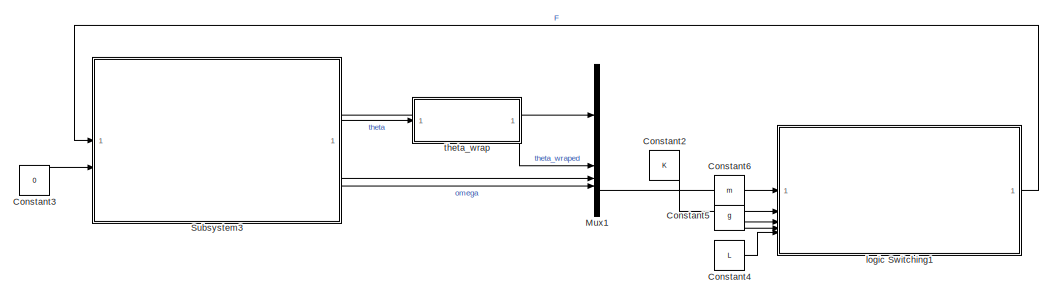
[diagram: root canvas - part 1/2, top right region]
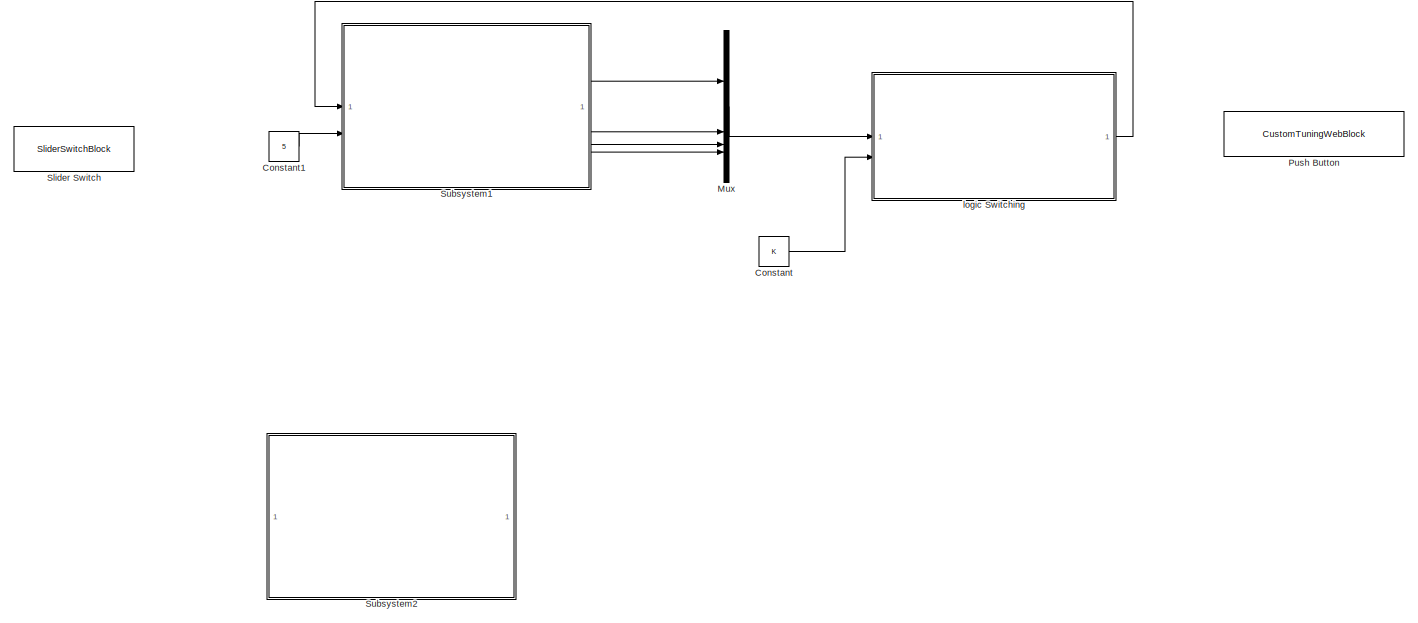
[diagram: root canvas - part 2/2, left side, full height]
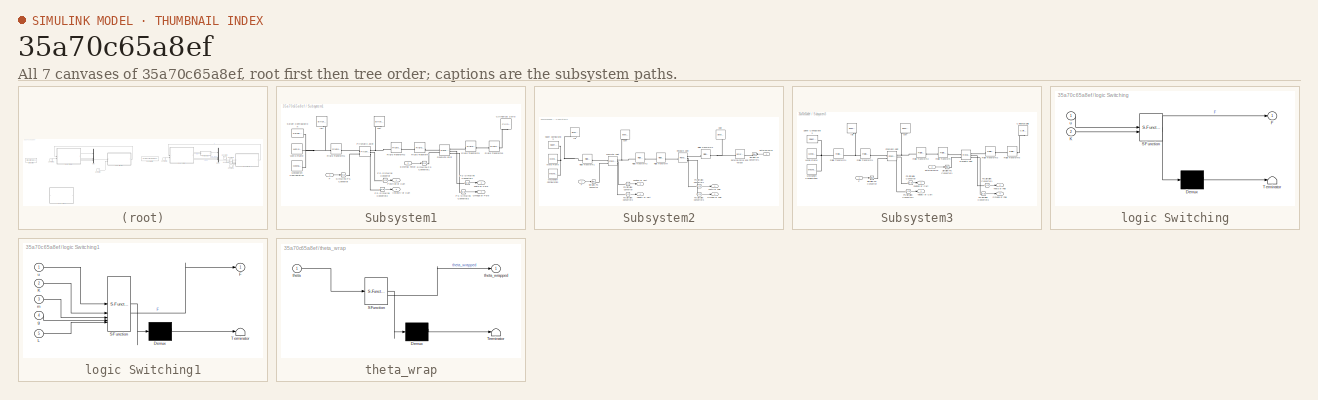
[diagram: thumbnail index - all 7 canvases of the model, root first then tree order]
MODEL slx_35a70c65a8ef
KIND model
CONFIG AbsTol = auto
CONFIG EnableMultiTasking = off
CONFIG FixedStep = 0.001
CONFIG MaxStep = auto
CONFIG MinStep = auto
CONFIG RelTol = 1e-3
CONFIG SampleTimeConstraint = Unconstrained
CONFIG SolverName = FixedStepAuto
CONFIG StartTime = 0.0
CONFIG StopTime = inf
BLOCK [Constant] Constant
  Commented = on
  Value = K
BLOCK [Constant] Constant1
  Commented = on
  Value = 5
BLOCK [Constant] Constant2
  Value = K
BLOCK [Constant] Constant3
  Value = 0
BLOCK [Constant] Constant4
  Value = L
BLOCK [Constant] Constant5
  Value = g
BLOCK [Constant] Constant6
  Value = m
BLOCK [Mux] Mux
  Commented = on
  DisplayOption = bar
BLOCK [Mux] Mux1
  DisplayOption = bar
BLOCK [CustomTuningWebBlock] Push Button
  Configuration = {"components":[{"name":"BackgroundImageComponent","settings":{"image":{"size":[0,0],"src":"default","srcOrientation":"horizontal"},"position":[0,0,1,1],"scaleMode":"0"}},{"name":"ButtonStateComponent","settings":{"buttonType":"momentary","clickFcn":"","image":{"size":[180,45],"srcOrientation":"Right"},"latched":false,"offValue":[],"onValue":"5","position":[0,0,1,1],"pressDelay":"500","pressFcn":""...<+15974ch>
  LabelPosition = Hide
  ShowInitialText = on
BLOCK [SliderSwitchBlock] Slider Switch
  Commented = on
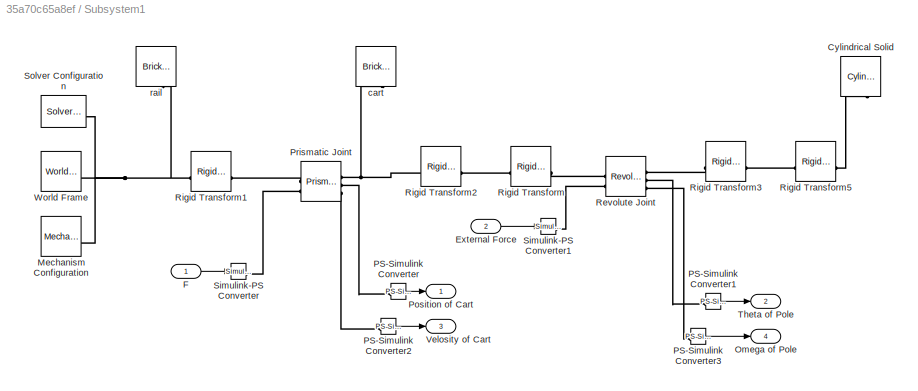
BLOCK [SubSystem] Subsystem1
  Commented = on
BLOCK [Reference] Subsystem1/Cylindrical Solid  REF=sm_lib/Body Elements/Cylindrical Solid
  NameLocation = left
  SourceBlock = sm_lib/Body Elements/Cylindrical Solid
  SourceType = Cylindrical Solid
BLOCK [Inport] Subsystem1/External Force
  Port = 2
BLOCK [Inport] Subsystem1/F
BLOCK [Reference] Subsystem1/Mechanism Configuration  REF=sm_lib/Utilities/Mechanism
Configuration
  SourceBlock = sm_lib/Utilities/Mechanism\nConfiguration
  SourceType = Mechanism\nConfiguration
BLOCK [Outport] Subsystem1/Omega of Pole
  Port = 4
BLOCK [Reference] Subsystem1/PS-Simulink Converter  REF=nesl_utility/PS-Simulink
Converter
  SourceBlock = nesl_utility/PS-Simulink\nConverter
  SourceType = PS-Simulink\nConverter
BLOCK [Reference] Subsystem1/PS-Simulink Converter1  REF=nesl_utility/PS-Simulink
Converter
  SourceBlock = nesl_utility/PS-Simulink\nConverter
  SourceType = PS-Simulink\nConverter
BLOCK [Reference] Subsystem1/PS-Simulink Converter2  REF=nesl_utility/PS-Simulink
Converter
  SourceBlock = nesl_utility/PS-Simulink\nConverter
  SourceType = PS-Simulink\nConverter
BLOCK [Reference] Subsystem1/PS-Simulink Converter3  REF=nesl_utility/PS-Simulink
Converter
  SourceBlock = nesl_utility/PS-Simulink\nConverter
  SourceType = PS-Simulink\nConverter
BLOCK [Outport] Subsystem1/Position of Cart
BLOCK [Reference] Subsystem1/Prismatic Joint  REF=sm_lib/Joints/Prismatic
Joint
  SourceBlock = sm_lib/Joints/Prismatic\nJoint
  SourceType = Prismatic\nJoint
BLOCK [Reference] Subsystem1/Revolute Joint  REF=sm_lib/Joints/Revolute Joint
  SourceBlock = sm_lib/Joints/Revolute Joint
  SourceType = Revolute Joint
BLOCK [Reference] Subsystem1/Rigid Transform  REF=sm_lib/Frames and
Transforms/Rigid
Transform
  SourceBlock = sm_lib/Frames and\nTransforms/Rigid\nTransform
  SourceType = Rigid\nTransform
BLOCK [Reference] Subsystem1/Rigid Transform1  REF=sm_lib/Frames and
Transforms/Rigid
Transform
  SourceBlock = sm_lib/Frames and\nTransforms/Rigid\nTransform
  SourceType = Rigid\nTransform
BLOCK [Reference] Subsystem1/Rigid Transform2  REF=sm_lib/Frames and
Transforms/Rigid
Transform
  SourceBlock = sm_lib/Frames and\nTransforms/Rigid\nTransform
  SourceType = Rigid\nTransform
BLOCK [Reference] Subsystem1/Rigid Transform3  REF=sm_lib/Frames and
Transforms/Rigid
Transform
  SourceBlock = sm_lib/Frames and\nTransforms/Rigid\nTransform
  SourceType = Rigid\nTransform
BLOCK [Reference] Subsystem1/Rigid Transform5  REF=sm_lib/Frames and
Transforms/Rigid
Transform
  SourceBlock = sm_lib/Frames and\nTransforms/Rigid\nTransform
  SourceType = Rigid\nTransform
BLOCK [Reference] Subsystem1/Simulink-PS Converter  REF=nesl_utility/Simulink-PS
Converter
  SourceBlock = nesl_utility/Simulink-PS\nConverter
  SourceType = Simulink-PS\nConverter
BLOCK [Reference] Subsystem1/Simulink-PS Converter1  REF=nesl_utility/Simulink-PS
Converter
  SourceBlock = nesl_utility/Simulink-PS\nConverter
  SourceType = Simulink-PS\nConverter
BLOCK [Reference] Subsystem1/Solver Configuration  REF=nesl_utility/Solver
Configuration
  SourceBlock = nesl_utility/Solver\nConfiguration
  SourceType = Solver\nConfiguration
BLOCK [Outport] Subsystem1/Theta of Pole
  Port = 2
BLOCK [Outport] Subsystem1/Velosity of Cart
  Port = 3
BLOCK [Reference] Subsystem1/World Frame  REF=sm_lib/Frames and
Transforms/World Frame
  SourceBlock = sm_lib/Frames and\nTransforms/World Frame
  SourceType = World Frame
BLOCK [Reference] Subsystem1/cart  REF=sm_lib/Body Elements/Brick Solid
  NameLocation = left
  SourceBlock = sm_lib/Body Elements/Brick Solid
  SourceType = Brick Solid
BLOCK [Reference] Subsystem1/rail  REF=sm_lib/Body Elements/Brick Solid
  NameLocation = left
  SourceBlock = sm_lib/Body Elements/Brick Solid
  SourceType = Brick Solid
BLOCK [SubSystem] Subsystem2
  Commented = on
BLOCK [Inport] Subsystem2/External Force
  NameLocation = top
  Port = 2
BLOCK [Reference] Subsystem2/External Force and Torque  REF=sm_lib/Forces and
Torques/External Force
and Torque
  NameLocation = top
  SourceBlock = sm_lib/Forces and\nTorques/External Force\nand Torque
  SourceType = External Force\nand Torque
BLOCK [Inport] Subsystem2/F
BLOCK [Reference] Subsystem2/Mechanism Configuration  REF=sm_lib/Utilities/Mechanism
Configuration
  SourceBlock = sm_lib/Utilities/Mechanism\nConfiguration
  SourceType = Mechanism\nConfiguration
BLOCK [Outport] Subsystem2/Omega of Pole
  Port = 2
BLOCK [Reference] Subsystem2/PS-Simulink Converter  REF=nesl_utility/PS-Simulink
Converter
  SourceBlock = nesl_utility/PS-Simulink\nConverter
  SourceType = PS-Simulink\nConverter
BLOCK [Reference] Subsystem2/PS-Simulink Converter1  REF=nesl_utility/PS-Simulink
Converter
  SourceBlock = nesl_utility/PS-Simulink\nConverter
  SourceType = PS-Simulink\nConverter
BLOCK [Reference] Subsystem2/PS-Simulink Converter2  REF=nesl_utility/PS-Simulink
Converter
  SourceBlock = nesl_utility/PS-Simulink\nConverter
  SourceType = PS-Simulink\nConverter
BLOCK [Reference] Subsystem2/PS-Simulink Converter3  REF=nesl_utility/PS-Simulink
Converter
  SourceBlock = nesl_utility/PS-Simulink\nConverter
  SourceType = PS-Simulink\nConverter
BLOCK [Outport] Subsystem2/Position of Cart
  Port = 3
BLOCK [Reference] Subsystem2/Prismatic Joint  REF=sm_lib/Joints/Prismatic
Joint
  SourceBlock = sm_lib/Joints/Prismatic\nJoint
  SourceType = Prismatic\nJoint
BLOCK [Reference] Subsystem2/Revolute Joint  REF=sm_lib/Joints/Revolute Joint
  SourceBlock = sm_lib/Joints/Revolute Joint
  SourceType = Revolute Joint
BLOCK [Reference] Subsystem2/Rigid Transform  REF=sm_lib/Frames and
Transforms/Rigid
Transform
  SourceBlock = sm_lib/Frames and\nTransforms/Rigid\nTransform
  SourceType = Rigid\nTransform
BLOCK [Reference] Subsystem2/Rigid Transform1  REF=sm_lib/Frames and
Transforms/Rigid
Transform
  SourceBlock = sm_lib/Frames and\nTransforms/Rigid\nTransform
  SourceType = Rigid\nTransform
BLOCK [Reference] Subsystem2/Rigid Transform2  REF=sm_lib/Frames and
Transforms/Rigid
Transform
  SourceBlock = sm_lib/Frames and\nTransforms/Rigid\nTransform
  SourceType = Rigid\nTransform
BLOCK [Reference] Subsystem2/Rigid Transform3  REF=sm_lib/Frames and
Transforms/Rigid
Transform
  SourceBlock = sm_lib/Frames and\nTransforms/Rigid\nTransform
  SourceType = Rigid\nTransform
BLOCK [Reference] Subsystem2/Simulink-PS Converter  REF=nesl_utility/Simulink-PS
Converter
  SourceBlock = nesl_utility/Simulink-PS\nConverter
  SourceType = Simulink-PS\nConverter
BLOCK [Reference] Subsystem2/Simulink-PS Converter1  REF=nesl_utility/Simulink-PS
Converter
  NameLocation = top
  SourceBlock = nesl_utility/Simulink-PS\nConverter
  SourceType = Simulink-PS\nConverter
BLOCK [Reference] Subsystem2/Solver Configuration  REF=nesl_utility/Solver
Configuration
  SourceBlock = nesl_utility/Solver\nConfiguration
  SourceType = Solver\nConfiguration
BLOCK [Outport] Subsystem2/Theta of Pole
BLOCK [Outport] Subsystem2/Velosity of Cart
  Port = 4
BLOCK [Reference] Subsystem2/World Frame  REF=sm_lib/Frames and
Transforms/World Frame
  SourceBlock = sm_lib/Frames and\nTransforms/World Frame
  SourceType = World Frame
BLOCK [Reference] Subsystem2/cart  REF=sm_lib/Body Elements/Brick Solid
  NameLocation = left
  SourceBlock = sm_lib/Body Elements/Brick Solid
  SourceType = Brick Solid
BLOCK [Reference] Subsystem2/pole  REF=sm_lib/Body Elements/Brick Solid
  NameLocation = left
  SourceBlock = sm_lib/Body Elements/Brick Solid
  SourceType = Brick Solid
BLOCK [Reference] Subsystem2/rail  REF=sm_lib/Body Elements/Brick Solid
  NameLocation = left
  SourceBlock = sm_lib/Body Elements/Brick Solid
  SourceType = Brick Solid
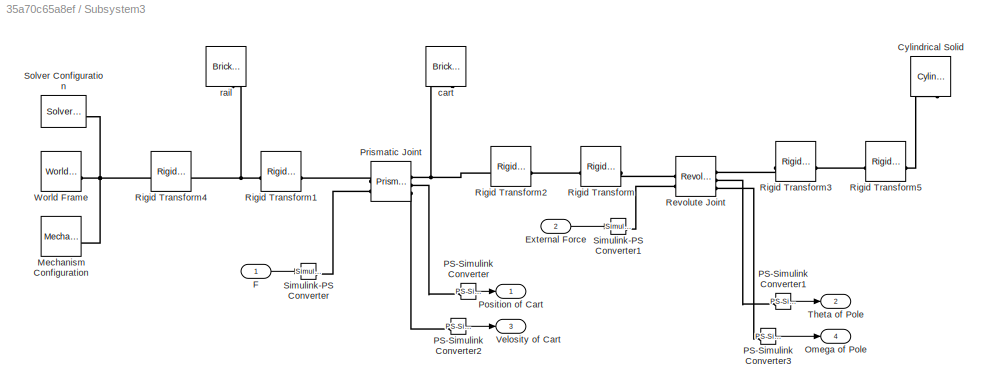
BLOCK [SubSystem] Subsystem3
BLOCK [Reference] Subsystem3/Cylindrical Solid  REF=sm_lib/Body Elements/Cylindrical Solid
  NameLocation = left
  SourceBlock = sm_lib/Body Elements/Cylindrical Solid
  SourceType = Cylindrical Solid
BLOCK [Inport] Subsystem3/External Force
  Port = 2
BLOCK [Inport] Subsystem3/F
BLOCK [Reference] Subsystem3/Mechanism Configuration  REF=sm_lib/Utilities/Mechanism
Configuration
  SourceBlock = sm_lib/Utilities/Mechanism\nConfiguration
  SourceType = Mechanism\nConfiguration
BLOCK [Outport] Subsystem3/Omega of Pole
  Port = 4
BLOCK [Reference] Subsystem3/PS-Simulink Converter  REF=nesl_utility/PS-Simulink
Converter
  SourceBlock = nesl_utility/PS-Simulink\nConverter
  SourceType = PS-Simulink\nConverter
BLOCK [Reference] Subsystem3/PS-Simulink Converter1  REF=nesl_utility/PS-Simulink
Converter
  SourceBlock = nesl_utility/PS-Simulink\nConverter
  SourceType = PS-Simulink\nConverter
BLOCK [Reference] Subsystem3/PS-Simulink Converter2  REF=nesl_utility/PS-Simulink
Converter
  SourceBlock = nesl_utility/PS-Simulink\nConverter
  SourceType = PS-Simulink\nConverter
BLOCK [Reference] Subsystem3/PS-Simulink Converter3  REF=nesl_utility/PS-Simulink
Converter
  SourceBlock = nesl_utility/PS-Simulink\nConverter
  SourceType = PS-Simulink\nConverter
BLOCK [Outport] Subsystem3/Position of Cart
BLOCK [Reference] Subsystem3/Prismatic Joint  REF=sm_lib/Joints/Prismatic
Joint
  SourceBlock = sm_lib/Joints/Prismatic\nJoint
  SourceType = Prismatic\nJoint
BLOCK [Reference] Subsystem3/Revolute Joint  REF=sm_lib/Joints/Revolute Joint
  SourceBlock = sm_lib/Joints/Revolute Joint
  SourceType = Revolute Joint
BLOCK [Reference] Subsystem3/Rigid Transform  REF=sm_lib/Frames and
Transforms/Rigid
Transform
  SourceBlock = sm_lib/Frames and\nTransforms/Rigid\nTransform
  SourceType = Rigid\nTransform
BLOCK [Reference] Subsystem3/Rigid Transform1  REF=sm_lib/Frames and
Transforms/Rigid
Transform
  SourceBlock = sm_lib/Frames and\nTransforms/Rigid\nTransform
  SourceType = Rigid\nTransform
BLOCK [Reference] Subsystem3/Rigid Transform2  REF=sm_lib/Frames and
Transforms/Rigid
Transform
  SourceBlock = sm_lib/Frames and\nTransforms/Rigid\nTransform
  SourceType = Rigid\nTransform
BLOCK [Reference] Subsystem3/Rigid Transform3  REF=sm_lib/Frames and
Transforms/Rigid
Transform
  SourceBlock = sm_lib/Frames and\nTransforms/Rigid\nTransform
  SourceType = Rigid\nTransform
BLOCK [Reference] Subsystem3/Rigid Transform4  REF=sm_lib/Frames and
Transforms/Rigid
Transform
  SourceBlock = sm_lib/Frames and\nTransforms/Rigid\nTransform
  SourceType = Rigid\nTransform
BLOCK [Reference] Subsystem3/Rigid Transform5  REF=sm_lib/Frames and
Transforms/Rigid
Transform
  SourceBlock = sm_lib/Frames and\nTransforms/Rigid\nTransform
  SourceType = Rigid\nTransform
BLOCK [Reference] Subsystem3/Simulink-PS Converter  REF=nesl_utility/Simulink-PS
Converter
  SourceBlock = nesl_utility/Simulink-PS\nConverter
  SourceType = Simulink-PS\nConverter
BLOCK [Reference] Subsystem3/Simulink-PS Converter1  REF=nesl_utility/Simulink-PS
Converter
  SourceBlock = nesl_utility/Simulink-PS\nConverter
  SourceType = Simulink-PS\nConverter
BLOCK [Reference] Subsystem3/Solver Configuration  REF=nesl_utility/Solver
Configuration
  SourceBlock = nesl_utility/Solver\nConfiguration
  SourceType = Solver\nConfiguration
BLOCK [Outport] Subsystem3/Theta of Pole
  Port = 2
BLOCK [Outport] Subsystem3/Velosity of Cart
  Port = 3
BLOCK [Reference] Subsystem3/World Frame  REF=sm_lib/Frames and
Transforms/World Frame
  SourceBlock = sm_lib/Frames and\nTransforms/World Frame
  SourceType = World Frame
BLOCK [Reference] Subsystem3/cart  REF=sm_lib/Body Elements/Brick Solid
  NameLocation = left
  SourceBlock = sm_lib/Body Elements/Brick Solid
  SourceType = Brick Solid
BLOCK [Reference] Subsystem3/rail  REF=sm_lib/Body Elements/Brick Solid
  NameLocation = left
  SourceBlock = sm_lib/Body Elements/Brick Solid
  SourceType = Brick Solid
BLOCK [SubSystem] logic Switching
  Commented = on
  ErrorFcn = Stateflow.Translate.translate
  PermitHierarchicalResolution = ExplicitOnly
  SFBlockType = MATLAB Function
  TreatAsAtomicUnit = on
BLOCK [Demux] logic Switching/ Demux 
  Outputs = 1
BLOCK [S-Function] logic Switching/ SFunction 
  EnableBusSupport = off
  FunctionName = sf_sfun
  PortCounts = [2 2]
  SFcnIsStateOwnerBlock = off
  SFunctionDeploymentMode = off
  Tag = Stateflow S-Function 1
BLOCK [Terminator] logic Switching/ Terminator 
BLOCK [Outport] logic Switching/F
BLOCK [Inport] logic Switching/K
  Port = 2
BLOCK [Inport] logic Switching/u
BLOCK [SubSystem] logic Switching1
  ErrorFcn = Stateflow.Translate.translate
  PermitHierarchicalResolution = ExplicitOnly
  SFBlockType = MATLAB Function
  TreatAsAtomicUnit = on
BLOCK [Demux] logic Switching1/ Demux 
  Outputs = 1
BLOCK [S-Function] logic Switching1/ SFunction 
  EnableBusSupport = on
  FunctionName = sf_sfun
  PortCounts = [5 2]
  SFcnIsStateOwnerBlock = off
  SFunctionDeploymentMode = off
  Tag = Stateflow S-Function 2
BLOCK [Terminator] logic Switching1/ Terminator 
BLOCK [Outport] logic Switching1/F
BLOCK [Inport] logic Switching1/K
  Port = 2
BLOCK [Inport] logic Switching1/L
  Port = 5
BLOCK [Inport] logic Switching1/g
  Port = 4
BLOCK [Inport] logic Switching1/m
  Port = 3
BLOCK [Inport] logic Switching1/u
BLOCK [SubSystem] theta_wrap
  ErrorFcn = Stateflow.Translate.translate
  PermitHierarchicalResolution = ExplicitOnly
  SFBlockType = MATLAB Function
  TreatAsAtomicUnit = on
BLOCK [Demux] theta_wrap/ Demux 
  Outputs = 1
BLOCK [S-Function] theta_wrap/ SFunction 
  EnableBusSupport = on
  FunctionName = sf_sfun
  PortCounts = [1 2]
  SFcnIsStateOwnerBlock = off
  SFunctionDeploymentMode = off
  Tag = Stateflow S-Function 3
BLOCK [Terminator] theta_wrap/ Terminator 
BLOCK [Inport] theta_wrap/theta
BLOCK [Outport] theta_wrap/theta_wrapped
LINE Constant1:1 -> Subsystem1:2
LINE Constant2:1 -> logic Switching1:2
LINE Constant3:1 -> Subsystem3:2
LINE Constant4:1 -> logic Switching1:5
LINE Constant5:1 -> logic Switching1:4
LINE Constant6:1 -> logic Switching1:3
LINE Constant:1 -> logic Switching:2
LINE Mux1:1 -> logic Switching1:1
LINE Mux:1 -> logic Switching:1
LINE Subsystem1/External Force:1 -> Subsystem1/Simulink-PS Converter1:1
LINE Subsystem1/F:1 -> Subsystem1/Simulink-PS Converter:1
LINE Subsystem1/PS-Simulink Converter1:1 -> Subsystem1/Theta of Pole:1
LINE Subsystem1/PS-Simulink Converter2:1 -> Subsystem1/Velosity of Cart:1
LINE Subsystem1/PS-Simulink Converter3:1 -> Subsystem1/Omega of Pole:1
LINE Subsystem1/PS-Simulink Converter:1 -> Subsystem1/Position of Cart:1
LINE Subsystem1:1 -> Mux:1
LINE Subsystem1:2 -> Mux:2
LINE Subsystem1:3 -> Mux:3
LINE Subsystem1:4 -> Mux:4
LINE Subsystem2/External Force:1 -> Subsystem2/Simulink-PS Converter1:1
LINE Subsystem2/F:1 -> Subsystem2/Simulink-PS Converter:1
LINE Subsystem2/PS-Simulink Converter1:1 -> Subsystem2/Theta of Pole:1
LINE Subsystem2/PS-Simulink Converter2:1 -> Subsystem2/Velosity of Cart:1
LINE Subsystem2/PS-Simulink Converter3:1 -> Subsystem2/Omega of Pole:1
LINE Subsystem2/PS-Simulink Converter:1 -> Subsystem2/Position of Cart:1
LINE Subsystem3/External Force:1 -> Subsystem3/Simulink-PS Converter1:1
LINE Subsystem3/F:1 -> Subsystem3/Simulink-PS Converter:1
LINE Subsystem3/PS-Simulink Converter1:1 -> Subsystem3/Theta of Pole:1
LINE Subsystem3/PS-Simulink Converter2:1 -> Subsystem3/Velosity of Cart:1
LINE Subsystem3/PS-Simulink Converter3:1 -> Subsystem3/Omega of Pole:1
LINE Subsystem3/PS-Simulink Converter:1 -> Subsystem3/Position of Cart:1
LINE Subsystem3:1 -> Mux1:1
LINE Subsystem3:2 -> theta_wrap:1
LINE Subsystem3:3 -> Mux1:3
LINE Subsystem3:4 -> Mux1:4
LINE logic Switching1:1 -> Subsystem3:1
LINE logic Switching:1 -> Subsystem1:1
LINE theta_wrap:1 -> Mux1:2
PLINE Subsystem1/Cylindrical Solid:RConn1 -- Subsystem1/Rigid Transform5:RConn1
PNET net1: Subsystem1/Mechanism Configuration:RConn1 -- Subsystem1/Rigid Transform1:LConn1 -- Subsystem1/Solver Configuration:RConn1 -- Subsystem1/World Frame:RConn1 -- Subsystem1/rail:RConn1
PLINE Subsystem1/PS-Simulink Converter1:LConn1 -- Subsystem1/Revolute Joint:RConn2
PLINE Subsystem1/PS-Simulink Converter2:LConn1 -- Subsystem1/Prismatic Joint:RConn3
PLINE Subsystem1/PS-Simulink Converter3:LConn1 -- Subsystem1/Revolute Joint:RConn3
PLINE Subsystem1/PS-Simulink Converter:LConn1 -- Subsystem1/Prismatic Joint:RConn2
PLINE Subsystem1/Prismatic Joint:LConn1 -- Subsystem1/Rigid Transform1:RConn1
PLINE Subsystem1/Prismatic Joint:LConn2 -- Subsystem1/Simulink-PS Converter:RConn1
PNET net2: Subsystem1/Prismatic Joint:RConn1 -- Subsystem1/Rigid Transform2:LConn1 -- Subsystem1/cart:RConn1
PLINE Subsystem1/Revolute Joint:LConn1 -- Subsystem1/Rigid Transform:RConn1
PLINE Subsystem1/Revolute Joint:LConn2 -- Subsystem1/Simulink-PS Converter1:RConn1
PLINE Subsystem1/Revolute Joint:RConn1 -- Subsystem1/Rigid Transform3:LConn1
PLINE Subsystem1/Rigid Transform2:RConn1 -- Subsystem1/Rigid Transform:LConn1
PLINE Subsystem1/Rigid Transform3:RConn1 -- Subsystem1/Rigid Transform5:LConn1
PLINE Subsystem2/External Force and Torque:LConn1 -- Subsystem2/Simulink-PS Converter1:RConn1
PNET net3: Subsystem2/External Force and Torque:RConn1 -- Subsystem2/Rigid Transform3:RConn1 -- Subsystem2/pole:RConn1
PNET net4: Subsystem2/Mechanism Configuration:RConn1 -- Subsystem2/Rigid Transform1:LConn1 -- Subsystem2/Solver Configuration:RConn1 -- Subsystem2/World Frame:RConn1 -- Subsystem2/rail:RConn1
PLINE Subsystem2/PS-Simulink Converter1:LConn1 -- Subsystem2/Revolute Joint:RConn2
PLINE Subsystem2/PS-Simulink Converter2:LConn1 -- Subsystem2/Prismatic Joint:RConn3
PLINE Subsystem2/PS-Simulink Converter3:LConn1 -- Subsystem2/Revolute Joint:RConn3
PLINE Subsystem2/PS-Simulink Converter:LConn1 -- Subsystem2/Prismatic Joint:RConn2
PLINE Subsystem2/Prismatic Joint:LConn1 -- Subsystem2/Rigid Transform1:RConn1
PLINE Subsystem2/Prismatic Joint:LConn2 -- Subsystem2/Simulink-PS Converter:RConn1
PNET net5: Subsystem2/Prismatic Joint:RConn1 -- Subsystem2/Rigid Transform2:LConn1 -- Subsystem2/cart:RConn1
PLINE Subsystem2/Revolute Joint:LConn1 -- Subsystem2/Rigid Transform:RConn1
PLINE Subsystem2/Revolute Joint:RConn1 -- Subsystem2/Rigid Transform3:LConn1
PLINE Subsystem2/Rigid Transform2:RConn1 -- Subsystem2/Rigid Transform:LConn1
PLINE Subsystem3/Cylindrical Solid:RConn1 -- Subsystem3/Rigid Transform5:RConn1
PNET net6: Subsystem3/Mechanism Configuration:RConn1 -- Subsystem3/Rigid Transform4:LConn1 -- Subsystem3/Solver Configuration:RConn1 -- Subsystem3/World Frame:RConn1
PLINE Subsystem3/PS-Simulink Converter1:LConn1 -- Subsystem3/Revolute Joint:RConn2
PLINE Subsystem3/PS-Simulink Converter2:LConn1 -- Subsystem3/Prismatic Joint:RConn3
PLINE Subsystem3/PS-Simulink Converter3:LConn1 -- Subsystem3/Revolute Joint:RConn3
PLINE Subsystem3/PS-Simulink Converter:LConn1 -- Subsystem3/Prismatic Joint:RConn2
PLINE Subsystem3/Prismatic Joint:LConn1 -- Subsystem3/Rigid Transform1:RConn1
PLINE Subsystem3/Prismatic Joint:LConn2 -- Subsystem3/Simulink-PS Converter:RConn1
PNET net7: Subsystem3/Prismatic Joint:RConn1 -- Subsystem3/Rigid Transform2:LConn1 -- Subsystem3/cart:RConn1
PLINE Subsystem3/Revolute Joint:LConn1 -- Subsystem3/Rigid Transform:RConn1
PLINE Subsystem3/Revolute Joint:LConn2 -- Subsystem3/Simulink-PS Converter1:RConn1
PLINE Subsystem3/Revolute Joint:RConn1 -- Subsystem3/Rigid Transform3:LConn1
PNET net8: Subsystem3/Rigid Transform1:LConn1 -- Subsystem3/Rigid Transform4:RConn1 -- Subsystem3/rail:RConn1
PLINE Subsystem3/Rigid Transform2:RConn1 -- Subsystem3/Rigid Transform:LConn1
PLINE Subsystem3/Rigid Transform3:RConn1 -- Subsystem3/Rigid Transform5:LConn1
note: PNET lines group multi-terminal physical nets as a canonical sorted terminal list (undirected conserving connections); 2-terminal nets keep the pairwise PLINE form
CHART logic Switching states=1 transitions=1
  STATE_LABEL 'eML_blk_kernel()'
  STATE_LABEL 'SCRIPT:\nfunction F = stabilize_controller(u, K)\n\nu = reshape(u,4,1);\nK = reshape(K,1,4); \n\nF = -K * u;\n\nF_max = 10;\nF = max(-F_max, min(F_max, F));\nend\n'
CHART logic Switching1 states=1 transitions=1
  STATE_LABEL 'eML_blk_kernel()'
  STATE_LABEL 'SCRIPT:\nfunction F = stabilize_controller(u, K, m, g, L)\n\ntheta = u(2);\nvelo = u(3);\nomega = u(4);\n\nk = 10;\n\nif (-0.262 < theta) && (theta < 0.262)\n\n    u = reshape(u, 4, 1);\n    K = reshape(K, 1, 4);\n\n    F = -K * u;\n\n    F_max = 10;\n    F = max(-F_max, min(F_max, F));\n\nelse\n    % E = 0.5*m*L^2*omega^2 + m*g*L*cos(theta);\n    E = (0.5*m*(velo^2 + 2*velo*L*cos(theta)*omega + L^2*omega^2)) + m*g*L*...<+243ch>'
CHART theta_wrap states=1 transitions=1
  STATE_LABEL 'eML_blk_kernel()'
  STATE_LABEL 'SCRIPT:\nfunction theta_wrapped = wrap_angle(theta)\n\ntheta_wrapped = atan2(sin(theta), cos(theta));'
CHART  states=0 transitions=0
CHART  states=0 transitions=0
CHART  states=0 transitions=0
